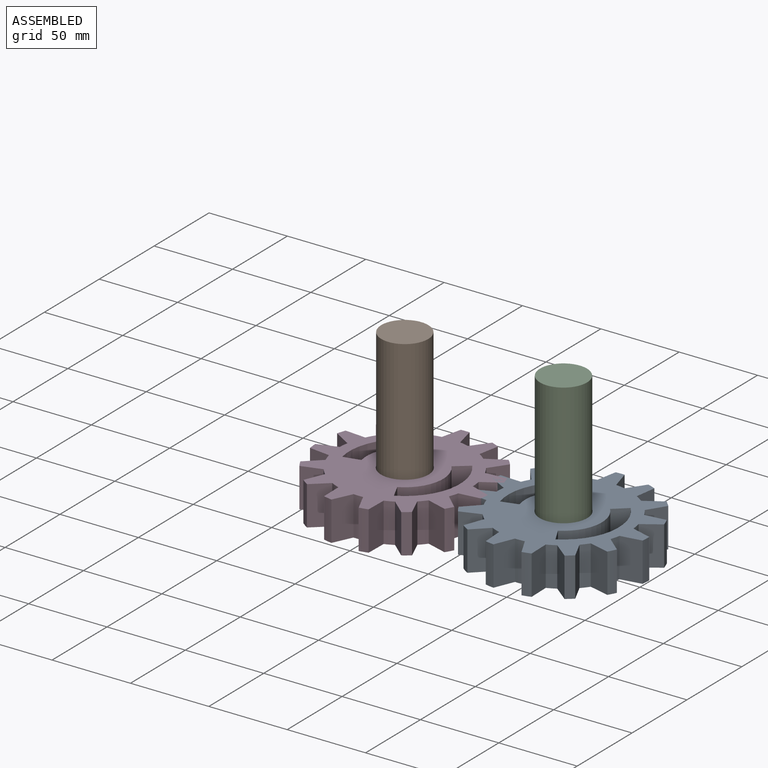
[diagram: assembled view]
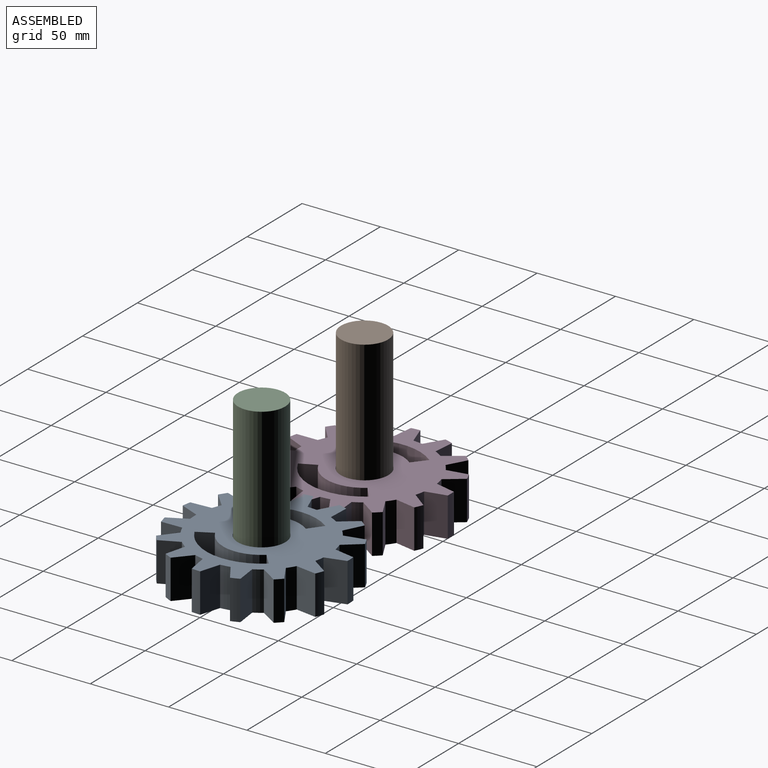
[diagram: assembled view, second angle]
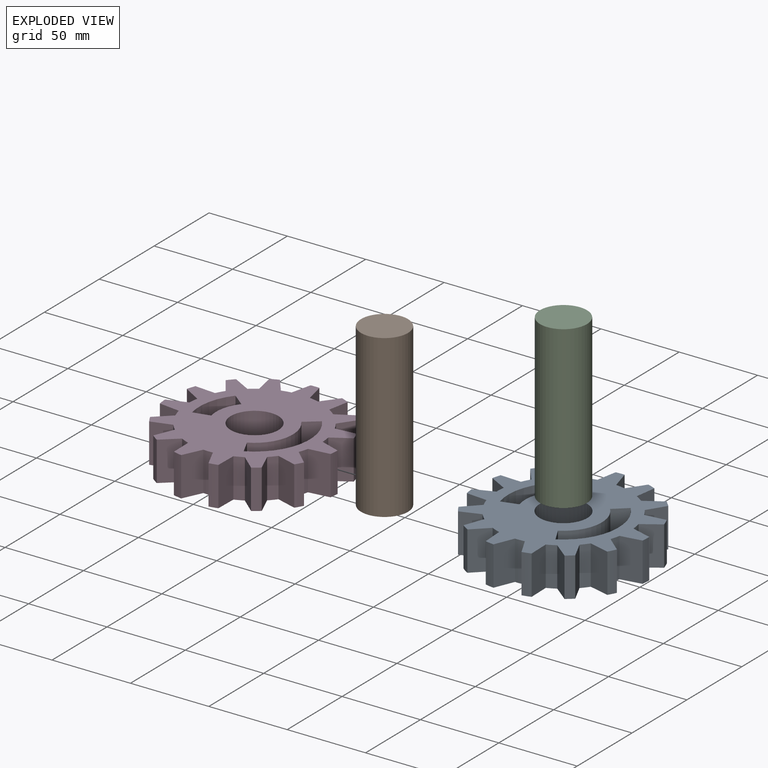
[diagram: exploded view]
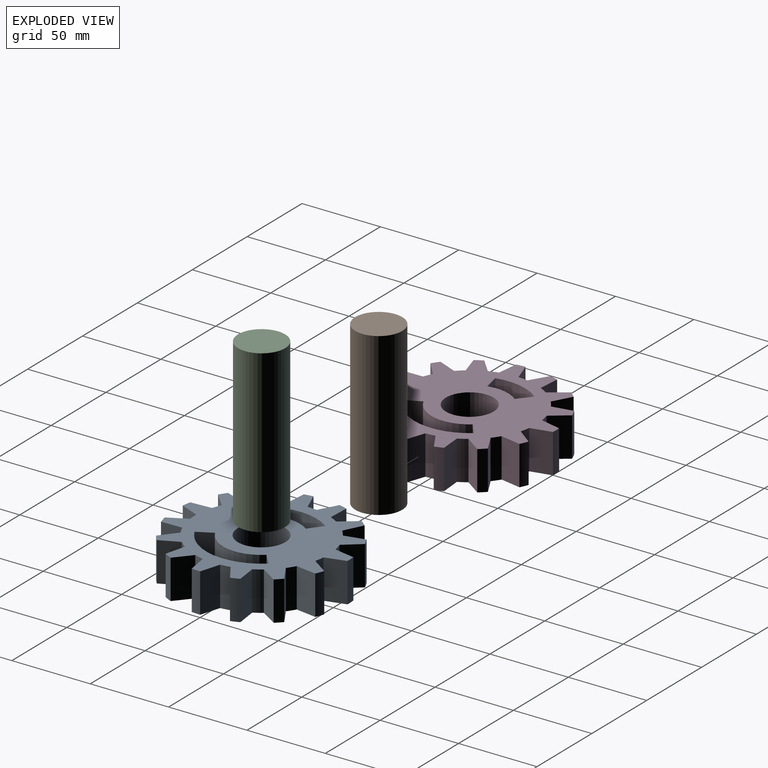
[diagram: exploded view, second angle]
ASSEMBLY  parts=4 mates=4
PART A: 71 faces, bbox 110.1x109.6x25 mm
  f0: plane 25x10.56mm, normal (-0.22,0.97,0), area 270.7mm2, adj f1,f68,f69,f70
  f1: cylinder r=35.32mm len=29.88mm, axis (0,0,-1), area 792.5mm2, adj f0,f2,f69,f70
  f2: plane 25x8.47mm, normal (-0.62,-0.78,0), area 270.7mm2, adj f1,f68,f69,f70
  f3: cylinder r=35.32mm len=53.84mm, axis (0,0,-1), area 1585mm2, adj f4,f66,f69,f70
  f4: plane 25x9.76mm, normal (0.9,0.43,0), area 270.7mm2, adj f3,f5,f69,f70
  f5: cylinder r=24.49mm len=37.33mm, axis (0,0,-1), area 1099mm2, adj f4,f66,f69,f70
  f6: plane 25x10.93mm, normal (-0.82,-0.57,0), area 333.4mm2, adj f7,f67,f69,f70
  f7: cylinder r=42.48mm len=25mm, axis (0,0,-1), area 152.6mm2, adj f6,f8,f69,f70
  f8: plane 25x13.29mm, normal (0.09,1,0), area 333.4mm2, adj f7,f9,f69,f70
  f9: cylinder r=55.14mm len=25mm, axis (0,0,-1), area 140.5mm2, adj f8,f10,f69,f70
  f10: plane 25x11.42mm, normal (-0.52,-0.86,0), area 333.4mm2, adj f9,f11,f69,f70
  f11: cylinder r=42.48mm len=25mm, axis (0,0,-1), area 152.6mm2, adj f10,f12,f69,f70
  f12: plane 25x12.6mm, normal (-0.33,0.95,0), area 333.4mm2, adj f11,f13,f69,f70
  f13: cylinder r=55.14mm len=25mm, axis (0,0,-1), area 140.5mm2, adj f12,f14,f69,f70
  f14: plane 25x13.23mm, normal (-0.12,-0.99,0), area 333.4mm2, adj f13,f15,f69,f70
  f15: cylinder r=42.48mm len=25mm, axis (0,0,-1), area 152.6mm2, adj f14,f16,f69,f70
  f16: plane 25x9.74mm, normal (-0.68,0.73,0), area 333.4mm2, adj f15,f17,f69,f70
  f17: cylinder r=55.14mm len=25mm, axis (0,0,-1), area 140.5mm2, adj f16,f18,f69,f70
  f18: plane 25x12.76mm, normal (0.29,-0.96,0), area 333.4mm2, adj f17,f19,f69,f70
  f19: cylinder r=42.48mm len=25mm, axis (0,0,-1), area 152.6mm2, adj f18,f20,f69,f70
  f20: plane 25x12.28mm, normal (-0.92,0.39,0), area 333.4mm2, adj f19,f21,f69,f70
  f21: cylinder r=55.14mm len=25mm, axis (0,0,-1), area 140.5mm2, adj f20,f22,f69,f70
  f22: plane 25x10.08mm, normal (0.66,-0.76,0), area 333.4mm2, adj f21,f23,f69,f70
  f23: cylinder r=42.48mm len=25mm, axis (0,0,-1), area 152.6mm2, adj f22,f24,f69,f70
  f24: plane 25x13.33mm, normal (-1,-0.02,0), area 333.4mm2, adj f23,f25,f69,f70
  f25: cylinder r=55.14mm len=25mm, axis (0,0,-1), area 140.5mm2, adj f24,f26,f69,f70
  f26: plane 25x12.08mm, normal (0.91,-0.42,0), area 333.4mm2, adj f25,f27,f69,f70
  f27: cylinder r=42.48mm len=25mm, axis (0,0,-1), area 152.6mm2, adj f26,f28,f69,f70
  f28: plane 25x12.08mm, normal (-0.91,-0.42,0), area 333.4mm2, adj f27,f29,f69,f70
  f29: cylinder r=55.14mm len=25mm, axis (0,0,-1), area 140.5mm2, adj f28,f30,f69,f70
  f30: plane 25x13.33mm, normal (1,-0.02,0), area 333.4mm2, adj f29,f31,f69,f70
  f31: cylinder r=42.48mm len=25mm, axis (0,0,-1), area 152.6mm2, adj f30,f32,f69,f70
  f32: plane 25x10.08mm, normal (-0.66,-0.76,0), area 333.4mm2, adj f31,f33,f69,f70
  f33: cylinder r=55.14mm len=25mm, axis (0,0,-1), area 140.5mm2, adj f32,f34,f69,f70
  f34: plane 25x12.28mm, normal (0.92,0.39,0), area 333.4mm2, adj f33,f35,f69,f70
  f35: cylinder r=42.48mm len=25mm, axis (0,0,-1), area 152.6mm2, adj f34,f36,f69,f70
  f36: plane 25x12.76mm, normal (-0.29,-0.96,0), area 333.4mm2, adj f35,f37,f69,f70
  f37: cylinder r=55.14mm len=25mm, axis (0,0,-1), area 140.5mm2, adj f36,f38,f69,f70
  f38: plane 25x9.74mm, normal (0.68,0.73,0), area 333.4mm2, adj f37,f39,f69,f70
  f39: cylinder r=42.48mm len=25mm, axis (0,0,-1), area 152.6mm2, adj f38,f40,f69,f70
  f40: plane 25x13.23mm, normal (0.12,-0.99,0), area 333.4mm2, adj f39,f41,f69,f70
  f41: cylinder r=55.14mm len=25mm, axis (0,0,-1), area 140.5mm2, adj f40,f42,f69,f70
  f42: plane 25x12.6mm, normal (0.33,0.95,0), area 333.4mm2, adj f41,f43,f69,f70
  f43: cylinder r=42.48mm len=25mm, axis (0,0,-1), area 152.6mm2, adj f42,f44,f69,f70
  f44: plane 25x11.42mm, normal (0.52,-0.86,0), area 333.4mm2, adj f43,f45,f69,f70
  f45: cylinder r=55.14mm len=25mm, axis (0,0,-1), area 140.5mm2, adj f44,f46,f69,f70
  f46: plane 25x13.29mm, normal (-0.09,1,0), area 333.4mm2, adj f45,f47,f69,f70
  f47: cylinder r=42.48mm len=25mm, axis (0,0,-1), area 152.6mm2, adj f46,f48,f69,f70
  f48: plane 25x10.93mm, normal (0.82,-0.57,0), area 333.4mm2, adj f47,f49,f69,f70
  f49: cylinder r=55.14mm len=25mm, axis (0,0,-1), area 140.5mm2, adj f48,f50,f69,f70
  f50: plane 25x11.67mm, normal (-0.48,0.88,0), area 333.4mm2, adj f49,f51,f69,f70
  f51: cylinder r=42.48mm len=25mm, axis (0,0,-1), area 152.6mm2, adj f50,f52,f69,f70
  f52: plane 25x13.09mm, normal (0.98,-0.19,0), area 333.4mm2, adj f51,f53,f69,f70
  f53: cylinder r=55.14mm len=25mm, axis (0,0,-1), area 140.5mm2, adj f52,f54,f69,f70
  f54: plane 25x10.64mm, normal (-0.8,0.6,0), area 333.4mm2, adj f53,f55,f69,f70
  f55: cylinder r=42.48mm len=25mm, axis (0,0,-1), area 152.6mm2, adj f54,f56,f69,f70
  f56: plane 25x12.99mm, normal (0.97,0.23,0), area 333.4mm2, adj f55,f57,f69,f70
  f57: cylinder r=55.14mm len=25mm, axis (0,0,-1), area 140.5mm2, adj f56,f58,f69,f70
  f58: plane 25x12.99mm, normal (-0.97,0.23,0), area 333.4mm2, adj f57,f59,f69,f70
  f59: cylinder r=42.48mm len=25mm, axis (0,0,-1), area 152.6mm2, adj f58,f60,f69,f70
  f60: plane 25x10.64mm, normal (0.8,0.6,0), area 333.4mm2, adj f59,f61,f69,f70
  f61: cylinder r=55.14mm len=25mm, axis (0,0,-1), area 140.5mm2, adj f60,f62,f69,f70
  f62: plane 25x13.09mm, normal (-0.98,-0.19,0), area 333.4mm2, adj f61,f63,f69,f70
  f63: cylinder r=42.48mm len=25mm, axis (0,0,-1), area 152.6mm2, adj f62,f64,f69,f70
  f64: plane 25x11.67mm, normal (0.48,0.88,0), area 333.4mm2, adj f63,f67,f69,f70
  f65: cylinder r=15.2mm len=30.39mm, axis (0,0,-1), area 2387mm2, adj f69,f70
  f66: plane 25x8.47mm, normal (0.62,-0.78,0), area 270.7mm2, adj f3,f5,f69,f70
  f67: cylinder r=55.14mm len=25mm, axis (0,0,-1), area 140.5mm2, adj f6,f64,f69,f70
  f68: cylinder r=24.49mm len=25mm, axis (0,0,-1), area 549.5mm2, adj f0,f2,f69,f70
  f69: plane 110.12x109.59mm, normal (0,0,1), area 5710.9mm2, adj f0,f1,f2,f3,f4,f5,f6,f7
  f70: plane 110.12x109.59mm, normal (0,0,-1), area 5710.9mm2, adj f0,f1,f2,f3,f4,f5,f6,f7
PART B: 3 faces, bbox 30x30x103.1 mm
  f0: cylinder r=15mm len=103.14mm, axis (0,0,-1), area 9720.6mm2, adj f1,f2
  f1: plane 30x30mm, normal (0,0,1), area 706.9mm2, adj f0
  f2: plane 30x30mm, normal (0,0,-1), area 706.9mm2, adj f0
PART C: same geometry as B
PART D: same geometry as A
PLACE A rot(axis=(0,0,1),2.5deg) t=(98.8,3.49,0)mm
PLACE B t=(0,0,25)mm fixed
PLACE C rot(axis=(0,0,-1),7.3deg) t=(98.8,3.49,25)mm fixed
PLACE D at identity
MATE parallel C.f0 <-> A.f65  axis (0,0,1) through (98.8,3.49,0)mm
MATE revolute A.f65 <-> C.f0  axis (0,0,1) through (98.8,3.49,0)mm
MATE parallel B.f0 <-> D.f65  axis (0,0,1) through (0,0,0)mm
MATE revolute D.f65 <-> B.f0  axis (0,0,1) through (0,0,0)mm
